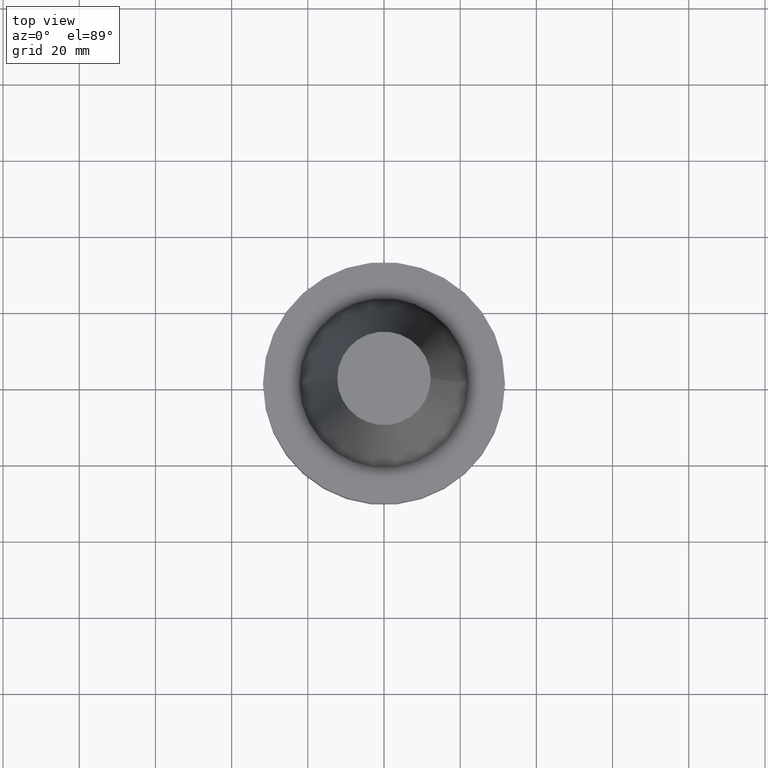
[diagram: clean part render]
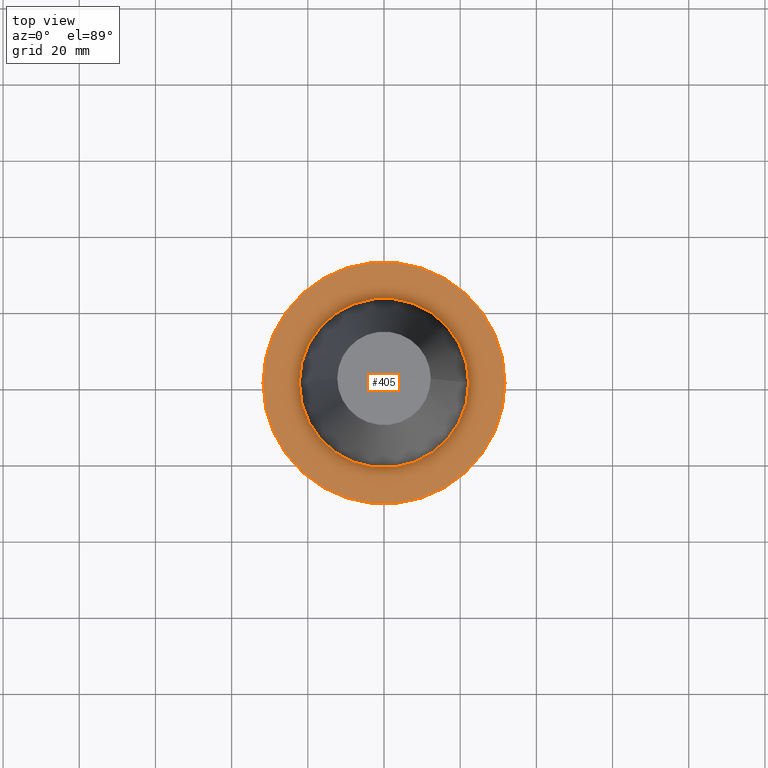
[diagram: same view with one face highlighted and labeled with its STEP entity id]
A machine part, top view. The second image highlights one B-rep face of the part: STEP entity #405.
In plain terms, the highlighted planar face has unit normal (0, 0, -1).
Its self-contained STEP definition (entity closure, byte-faithful):
#7 = FACE_OUTER_BOUND ( 'NONE', #214, .T. ) ;
#9 = EDGE_CURVE ( 'NONE', #328, #584, #636, .T. ) ;
#56 = AXIS2_PLACEMENT_3D ( 'NONE', #546, #729, #402 ) ;
#67 = ORIENTED_EDGE ( 'NONE', *, *, #339, .F. ) ;
#73 = AXIS2_PLACEMENT_3D ( 'NONE', #504, #627, #97 ) ;
#97 = DIRECTION ( 'NONE',  ( 1.000000000000000000, 0.000000000000000000, 0.000000000000000000 ) ) ;
#143 = DIRECTION ( 'NONE',  ( -0.000000000000000000, -0.000000000000000000, 1.000000000000000000 ) ) ;
#159 = ORIENTED_EDGE ( 'NONE', *, *, #9, .T. ) ;
#162 = CARTESIAN_POINT ( 'NONE',  ( -31.75000000000000000, 3.888253587292846476E-15, -1.000000000000000888 ) ) ;
#166 = EDGE_CURVE ( 'NONE', #320, #690, #600, .T. ) ;
#214 = EDGE_LOOP ( 'NONE', ( #159, #290 ) ) ;
#227 = ORIENTED_EDGE ( 'NONE', *, *, #166, .F. ) ;
#257 = AXIS2_PLACEMENT_3D ( 'NONE', #847, #587, #385 ) ;
#290 = ORIENTED_EDGE ( 'NONE', *, *, #466, .T. ) ;
#320 = VERTEX_POINT ( 'NONE', #456 ) ;
#328 = VERTEX_POINT ( 'NONE', #833 ) ;
#339 = EDGE_CURVE ( 'NONE', #690, #320, #380, .T. ) ;
#344 = DIRECTION ( 'NONE',  ( 1.000000000000000000, 0.000000000000000000, 0.000000000000000000 ) ) ;
#380 = CIRCLE ( 'NONE', #257, 22.22500000000000142 ) ;
#385 = DIRECTION ( 'NONE',  ( 1.000000000000000000, 0.000000000000000000, 0.000000000000000000 ) ) ;
#402 = DIRECTION ( 'NONE',  ( 1.000000000000000000, 0.000000000000000000, 0.000000000000000000 ) ) ;
#405 = ADVANCED_FACE ( 'NONE', ( #804, #7 ), #472, .F. ) ;
#408 = AXIS2_PLACEMENT_3D ( 'NONE', #532, #669, #852 ) ;
#434 = CIRCLE ( 'NONE', #710, 31.75000000000000000 ) ;
#456 = CARTESIAN_POINT ( 'NONE',  ( 22.22500000000000142, 0.000000000000000000, -1.000000000000000888 ) ) ;
#466 = EDGE_CURVE ( 'NONE', #584, #328, #434, .T. ) ;
#472 = PLANE ( 'NONE',  #408 ) ;
#504 = CARTESIAN_POINT ( 'NONE',  ( 0.000000000000000000, 0.000000000000000000, -1.000000000000000888 ) ) ;
#532 = CARTESIAN_POINT ( 'NONE',  ( 0.000000000000000000, 31.75000000000000000, -0.9999999999999995559 ) ) ;
#546 = CARTESIAN_POINT ( 'NONE',  ( 0.000000000000000000, 0.000000000000000000, -1.000000000000000888 ) ) ;
#548 = EDGE_LOOP ( 'NONE', ( #227, #67 ) ) ;
#584 = VERTEX_POINT ( 'NONE', #162 ) ;
#587 = DIRECTION ( 'NONE',  ( -0.000000000000000000, -0.000000000000000000, 1.000000000000000000 ) ) ;
#600 = CIRCLE ( 'NONE', #73, 22.22500000000000142 ) ;
#627 = DIRECTION ( 'NONE',  ( -0.000000000000000000, -0.000000000000000000, 1.000000000000000000 ) ) ;
#636 = CIRCLE ( 'NONE', #56, 31.75000000000000000 ) ;
#667 = CARTESIAN_POINT ( 'NONE',  ( -22.22500000000000142, 2.721777511104992849E-15, -1.000000000000000888 ) ) ;
#669 = DIRECTION ( 'NONE',  ( 0.000000000000000000, 0.000000000000000000, -1.000000000000000000 ) ) ;
#690 = VERTEX_POINT ( 'NONE', #667 ) ;
#710 = AXIS2_PLACEMENT_3D ( 'NONE', #728, #143, #344 ) ;
#728 = CARTESIAN_POINT ( 'NONE',  ( 0.000000000000000000, 0.000000000000000000, -1.000000000000000888 ) ) ;
#729 = DIRECTION ( 'NONE',  ( -0.000000000000000000, -0.000000000000000000, 1.000000000000000000 ) ) ;
#804 = FACE_BOUND ( 'NONE', #548, .T. ) ;
#833 = CARTESIAN_POINT ( 'NONE',  ( 31.75000000000000000, 0.000000000000000000, -1.000000000000000888 ) ) ;
#847 = CARTESIAN_POINT ( 'NONE',  ( 0.000000000000000000, 0.000000000000000000, -1.000000000000000888 ) ) ;
#852 = DIRECTION ( 'NONE',  ( -1.000000000000000000, 0.000000000000000000, -0.000000000000000000 ) ) ;